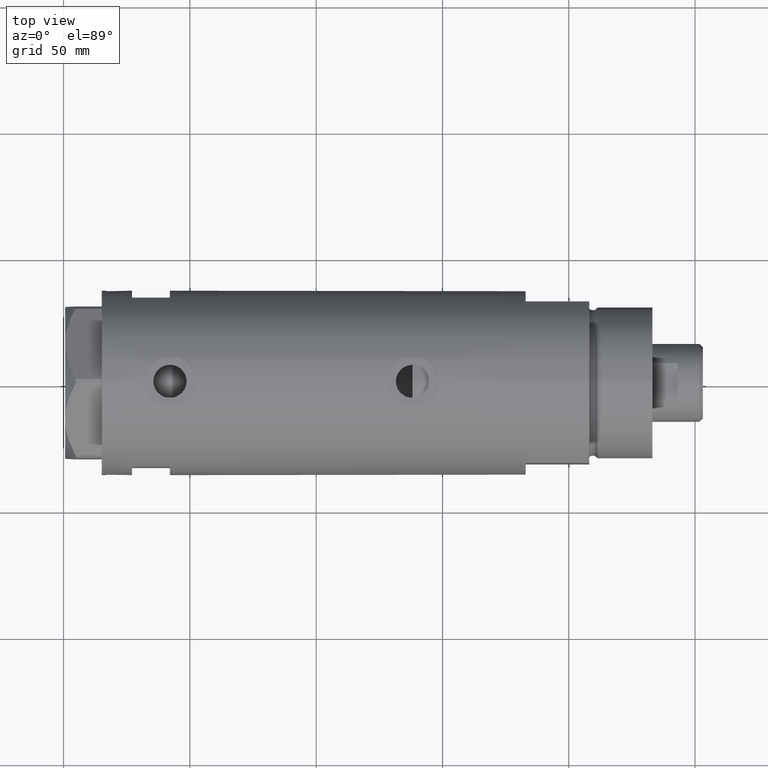
[diagram: clean part render]
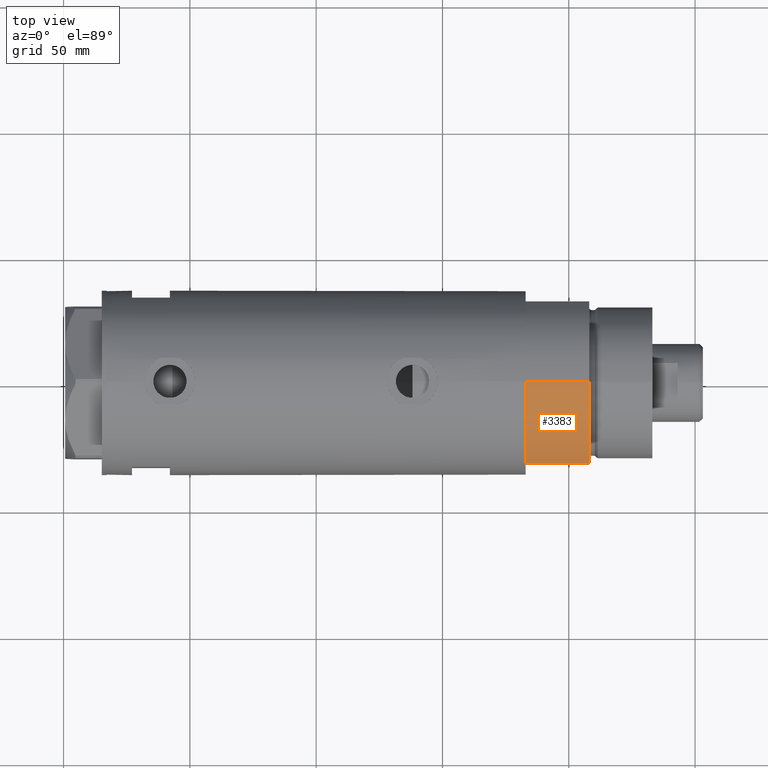
[diagram: same view with one face highlighted and labeled with its STEP entity id]
A machine part, top view. The second image highlights one B-rep face of the part: STEP entity #3383.
In plain terms, the highlighted cylindrical surface (partial cylindrical patch) has radius 36.5 mm, axis along (-1, -0, 0).
Its self-contained STEP definition (entity closure, byte-faithful):
#64 = VECTOR ( 'NONE', #1869, 1000.000000000000000 ) ;
#130 = AXIS2_PLACEMENT_3D ( 'NONE', #1648, #305, #3994 ) ;
#305 = DIRECTION ( 'NONE',  ( 0.000000000000000000, 0.000000000000000000, 1.000000000000000000 ) ) ;
#664 = ORIENTED_EDGE ( 'NONE', *, *, #2272, .T. ) ;
#690 = CARTESIAN_POINT ( 'NONE',  ( -17.55704986607943496, -32.00000000000000000, 25.19999999999999929 ) ) ;
#691 = EDGE_LOOP ( 'NONE', ( #3666, #4630, #3531, #664 ) ) ;
#856 = LINE ( 'NONE', #4498, #1580 ) ;
#1015 = CARTESIAN_POINT ( 'NONE',  ( -17.55704986607943496, -32.00000000000000000, 0.000000000000000000 ) ) ;
#1332 = FACE_OUTER_BOUND ( 'NONE', #691, .T. ) ;
#1427 = CARTESIAN_POINT ( 'NONE',  ( -36.50000000000000000, 0.000000000000000000, 25.19999999999999929 ) ) ;
#1504 = EDGE_CURVE ( 'NONE', #3113, #5475, #2438, .T. ) ;
#1580 = VECTOR ( 'NONE', #2130, 1000.000000000000000 ) ;
#1648 = CARTESIAN_POINT ( 'NONE',  ( 0.000000000000000000, 0.000000000000000000, 0.000000000000000000 ) ) ;
#1853 = VERTEX_POINT ( 'NONE', #1015 ) ;
#1869 = DIRECTION ( 'NONE',  ( -0.000000000000000000, -0.000000000000000000, -1.000000000000000000 ) ) ;
#1900 = DIRECTION ( 'NONE',  ( 0.000000000000000000, 0.000000000000000000, 1.000000000000000000 ) ) ;
#2059 = AXIS2_PLACEMENT_3D ( 'NONE', #3744, #1900, #4071 ) ;
#2130 = DIRECTION ( 'NONE',  ( -0.000000000000000000, -0.000000000000000000, 1.000000000000000000 ) ) ;
#2272 = EDGE_CURVE ( 'NONE', #1853, #3162, #856, .T. ) ;
#2310 = EDGE_CURVE ( 'NONE', #5475, #1853, #3788, .T. ) ;
#2415 = EDGE_CURVE ( 'NONE', #3113, #3162, #5591, .T. ) ;
#2438 = LINE ( 'NONE', #1427, #64 ) ;
#2512 = CARTESIAN_POINT ( 'NONE',  ( -36.50000000000000000, 0.000000000000000000, 0.000000000000000000 ) ) ;
#2648 = AXIS2_PLACEMENT_3D ( 'NONE', #4994, #5017, #5521 ) ;
#3113 = VERTEX_POINT ( 'NONE', #5285 ) ;
#3162 = VERTEX_POINT ( 'NONE', #690 ) ;
#3383 = ADVANCED_FACE ( 'NONE', ( #1332 ), #4155, .T. ) ;
#3531 = ORIENTED_EDGE ( 'NONE', *, *, #2310, .T. ) ;
#3666 = ORIENTED_EDGE ( 'NONE', *, *, #2415, .F. ) ;
#3744 = CARTESIAN_POINT ( 'NONE',  ( 0.000000000000000000, 0.000000000000000000, 25.19999999999999929 ) ) ;
#3788 = CIRCLE ( 'NONE', #130, 36.50000000000000000 ) ;
#3994 = DIRECTION ( 'NONE',  ( 1.000000000000000000, 0.000000000000000000, 0.000000000000000000 ) ) ;
#4071 = DIRECTION ( 'NONE',  ( 1.000000000000000000, 0.000000000000000000, 0.000000000000000000 ) ) ;
#4155 = CYLINDRICAL_SURFACE ( 'NONE', #2648, 36.50000000000000000 ) ;
#4498 = CARTESIAN_POINT ( 'NONE',  ( -17.55704986607943141, -32.00000000000000000, 0.000000000000000000 ) ) ;
#4630 = ORIENTED_EDGE ( 'NONE', *, *, #1504, .T. ) ;
#4994 = CARTESIAN_POINT ( 'NONE',  ( 0.000000000000000000, 0.000000000000000000, 25.19999999999999929 ) ) ;
#5017 = DIRECTION ( 'NONE',  ( -0.000000000000000000, -0.000000000000000000, -1.000000000000000000 ) ) ;
#5285 = CARTESIAN_POINT ( 'NONE',  ( -36.50000000000000000, 0.000000000000000000, 25.19999999999999929 ) ) ;
#5475 = VERTEX_POINT ( 'NONE', #2512 ) ;
#5521 = DIRECTION ( 'NONE',  ( -1.000000000000000000, 0.000000000000000000, 0.000000000000000000 ) ) ;
#5591 = CIRCLE ( 'NONE', #2059, 36.50000000000000000 ) ;